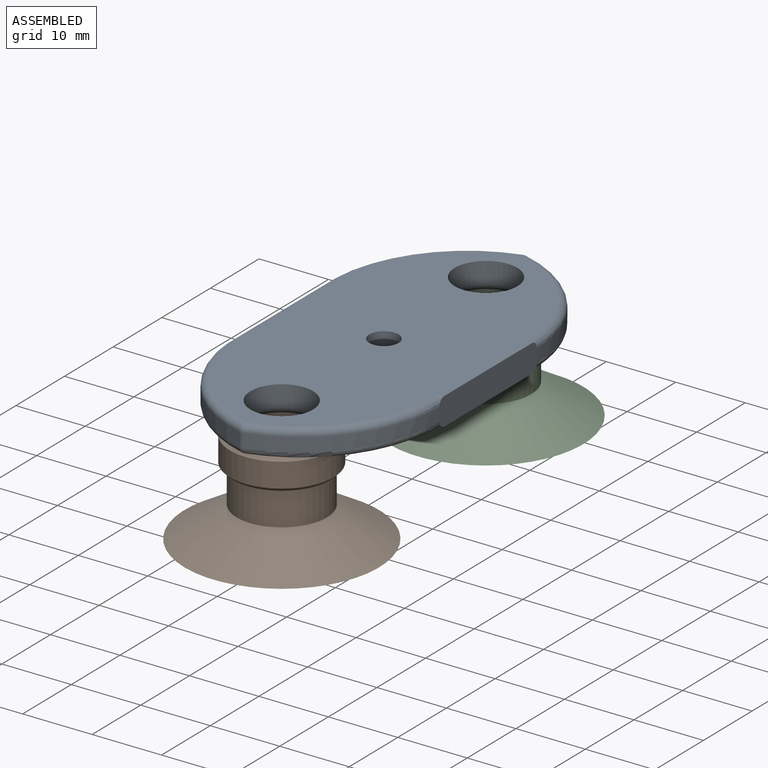
[diagram: assembled view]
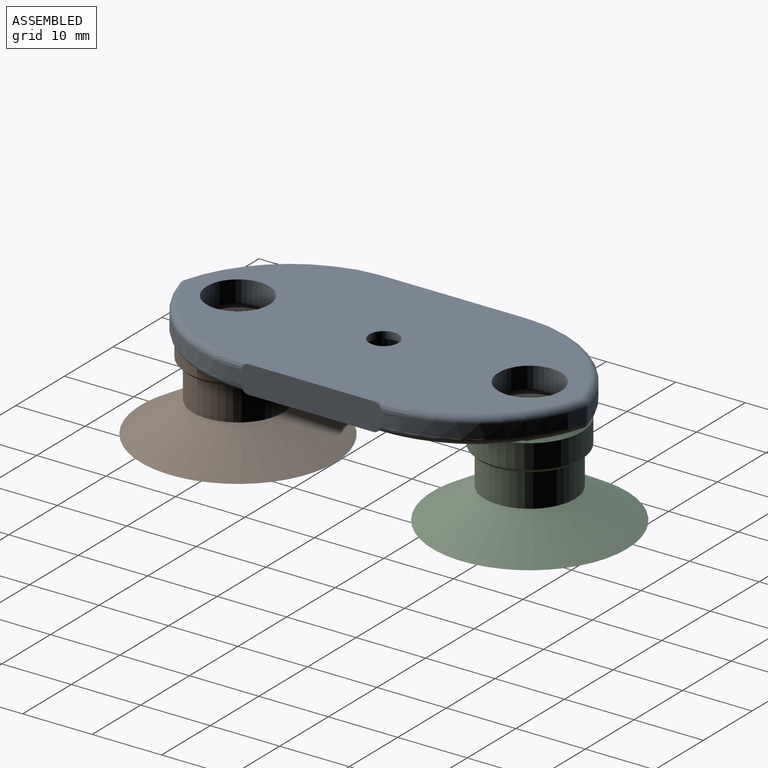
[diagram: assembled view, second angle]
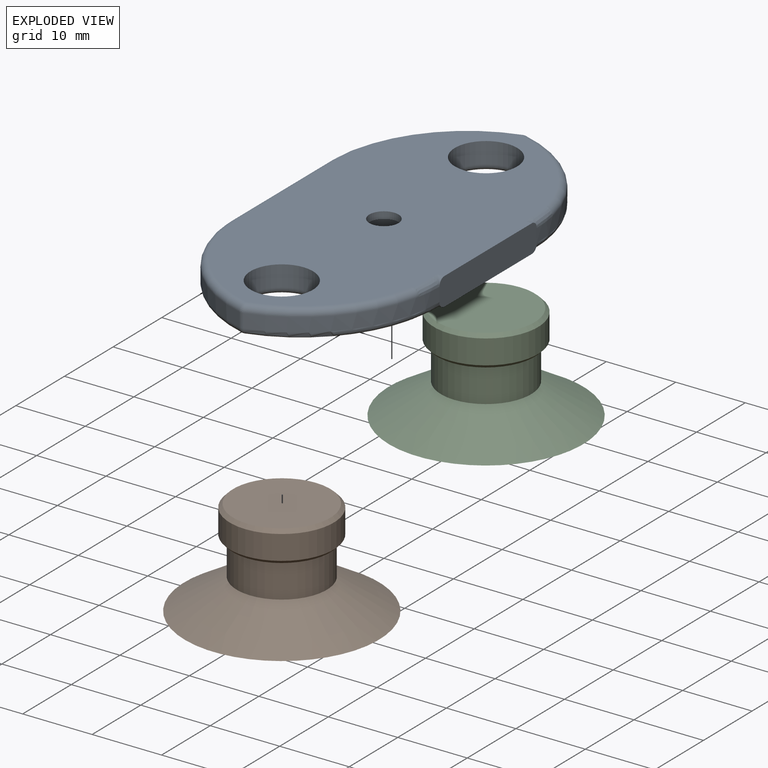
[diagram: exploded view]
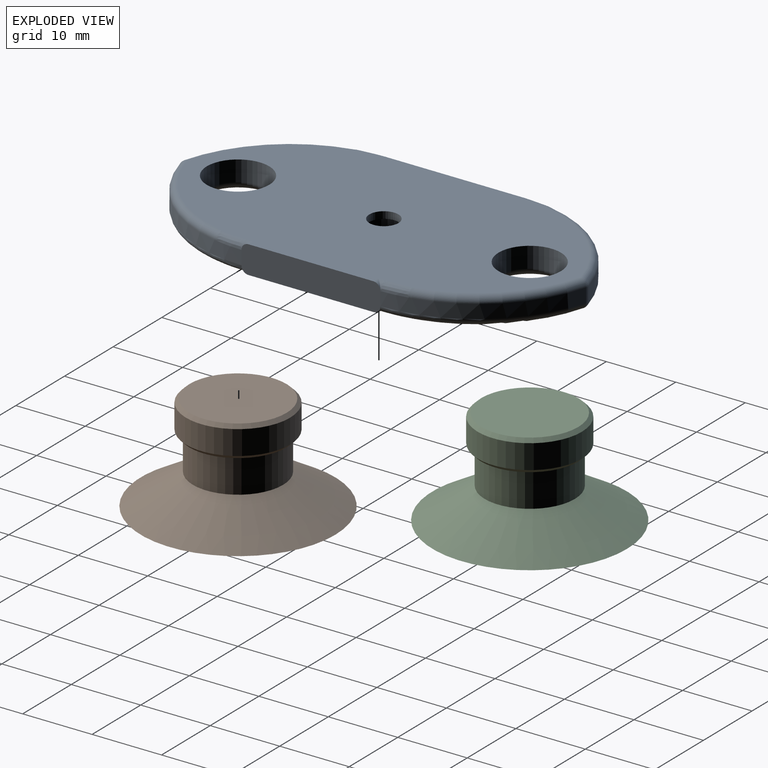
[diagram: exploded view, second angle]
ASSEMBLY  parts=3 mates=4
PART A: 45 faces, bbox 33.7x4.5x62.1 mm
  f0: plane 20x4mm, normal (1,0,0), area 79.1mm2, adj f27,f28,f29,f35,f40,f42,f43,f44
  f1: sphere r=1mm, area 0.5mm2, adj f15,f21,f22
  f2: sphere r=1mm, area 0.5mm2, adj f9,f23,f31
  f3: plane 10.18x10.18mm, normal (0,1,0), area 67.6mm2, adj f18,f32
  f4: sphere r=1mm, area 0.5mm2, adj f22,f36,f37
  f5: cylinder r=20mm len=19.3mm, axis (0,-1,0), area 52.2mm2, adj f6,f13,f14,f15,f22,f37
  f6: plane 20x2mm, normal (-1,0,0), area 40mm2, adj f5,f7,f12,f38
  f7: cylinder r=20mm len=19.3mm, axis (0,1,0), area 52.2mm2, adj f6,f9,f10,f11,f31,f39
  f8: sphere r=1mm, area 0.5mm2, adj f31,f39,f41
  f9: torus R=19mm, axis (0,-1,0), area 33.7mm2, adj f2,f7,f10,f29
  f10: bspline ~1.42x1.28mm, area 0.5mm2, adj f7,f9,f11,f29
  f11: bspline ~7.43x1.45mm, area 5.7mm2, adj f7,f10,f12,f29
  f12: cylinder r=1mm len=20mm, axis (0,0,1), area 31.4mm2, adj f6,f11,f13,f29
  f13: bspline ~3.91x1.25mm, area 5.7mm2, adj f5,f12,f14,f29
  f14: bspline ~1.42x1.28mm, area 0.5mm2, adj f5,f13,f15,f29
  f15: torus R=19mm, axis (0,-1,0), area 33.7mm2, adj f1,f5,f14,f29
  f16: cylinder r=4.5mm len=9mm, axis (0,-1,0), area 84.8mm2, adj f29,f34
  f17: cylinder r=4.5mm len=9mm, axis (0,-1,0), area 84.8mm2, adj f29,f33
  f18: cylinder r=2.1mm len=4.2mm, axis (0,-1,0), area 13.2mm2, adj f3,f29
  f19: bspline ~7.43x1.45mm, area 5.7mm2, adj f20,f25,f29,f35
  f20: bspline ~1.42x1.28mm, area 0.5mm2, adj f19,f21,f29,f35
  f21: torus R=19mm, axis (0,-1,0), area 33.7mm2, adj f1,f20,f29,f35
  f22: cylinder r=1mm len=2mm, axis (0,1,0), area 1.1mm2, adj f1,f4,f5,f35
  f23: torus R=19mm, axis (0,-1,0), area 33.7mm2, adj f2,f24,f29,f40
  f24: bspline ~1.42x1.28mm, area 0.5mm2, adj f23,f29,f30,f40
  f25: bspline ~1.67x1mm, area 0.8mm2, adj f19,f27,f29
  f26: bspline ~1.67x1mm, area 0.8mm2, adj f28,f29,f30
  f27: cylinder r=1mm len=1mm, axis (1,0,0), area 0.8mm2, adj f0,f25,f29
  f28: cylinder r=1mm len=1mm, axis (1,0,0), area 0.8mm2, adj f0,f26,f29
  f29: plane 57.03x29.37mm, normal (0,-1,0), area 1196.6mm2, adj f0,f9,f10,f11,f12,f13,f14,f15
  f30: bspline ~3.91x1.25mm, area 5.7mm2, adj f24,f26,f29,f40
  f31: cylinder r=1mm len=2mm, axis (0,1,0), area 1.1mm2, adj f2,f7,f8,f40
  f32: cylinder r=5.09mm len=10.18mm, axis (0,1,0), area 96mm2, adj f3,f42
  f33: torus R=5.5mm, axis (0,1,0), area 48mm2, adj f17,f42
  f34: torus R=5.5mm, axis (0,1,0), area 48mm2, adj f16,f42
  f35: cylinder r=20mm len=19.3mm, axis (0,1,0), area 52.2mm2, adj f0,f19,f20,f21,f22,f36
  f36: torus R=19mm, axis (0,1,0), area 41mm2, adj f4,f35,f42,f43
  f37: torus R=19mm, axis (0,1,0), area 40.2mm2, adj f4,f5,f38,f42
  f38: cylinder r=1mm len=20mm, axis (0,0,1), area 31.4mm2, adj f6,f37,f39,f42
  f39: torus R=19mm, axis (0,1,0), area 40.2mm2, adj f7,f8,f38,f42
  f40: cylinder r=20mm len=19.3mm, axis (0,-1,0), area 52.2mm2, adj f0,f23,f24,f30,f31,f41
  f41: torus R=19mm, axis (0,1,0), area 41mm2, adj f8,f40,f42,f44
  f42: plane 56.66x29mm, normal (0,1,0), area 1065mm2, adj f0,f32,f33,f34,f36,f37,f38,f39
  f43: cylinder r=1mm len=1.03mm, axis (1,0,0), area 0.8mm2, adj f0,f36,f42
  f44: cylinder r=1mm len=1.03mm, axis (1,0,0), area 0.8mm2, adj f0,f41,f42
PART B: 12 faces, bbox 28x28x14 mm
  f0: plane 4x4mm, normal (0,0,-1), area 12.6mm2, adj f1
  f1: cylinder r=2mm len=4mm, axis (0,0,-1), area 22.6mm2, adj f0,f2
  f2: plane 19.86x19.86mm, normal (0,0,-1), area 297.2mm2, adj f1,f3
  f3: cone r=11.21mm half-angle=55deg, axis (0,0,-1), area 221.1mm2, adj f2,f4
  f4: plane 28x28mm, normal (0,0,-1), area 124.9mm2, adj f3,f5
  f5: cone r=10.25mm half-angle=59deg, axis (0,0,-1), area 563.3mm2, adj f4,f6
  f6: cylinder r=6.5mm len=13mm, axis (0,0,-1), area 204.2mm2, adj f5,f7
  f7: plane 14x14mm, normal (0,0,-1), area 21.2mm2, adj f6,f8
  f8: cone r=7.25mm half-angle=45deg, axis (0,0,1), area 32.2mm2, adj f7,f9
  f9: cylinder r=7.5mm len=15mm, axis (0,0,-1), area 164.9mm2, adj f8,f11
  f10: plane 14x14mm, normal (0,0,1), area 153.9mm2, adj f11
  f11: cone r=7.25mm half-angle=45deg, axis (0,0,-1), area 32.2mm2, adj f9,f10
PART C: same geometry as B
PLACE A rot(axis=(-1,0,0),90deg) t=(0,0,0)mm
PLACE B t=(0,-21,-20)mm
PLACE C t=(0,21,-20)mm
MATE planar C.f1 <-> A.f42  axis (0,0,1) through (0,21,-6)mm
MATE planar B.f1 <-> A.f7  axis (0,0,1) through (0,-21,-6)mm
MATE slider C.f1 <-> A.f17  axis (0,0,1) through (0,21,-6)mm
MATE slider B.f1 <-> A.f16  axis (0,0,1) through (0,-21,-6)mm
